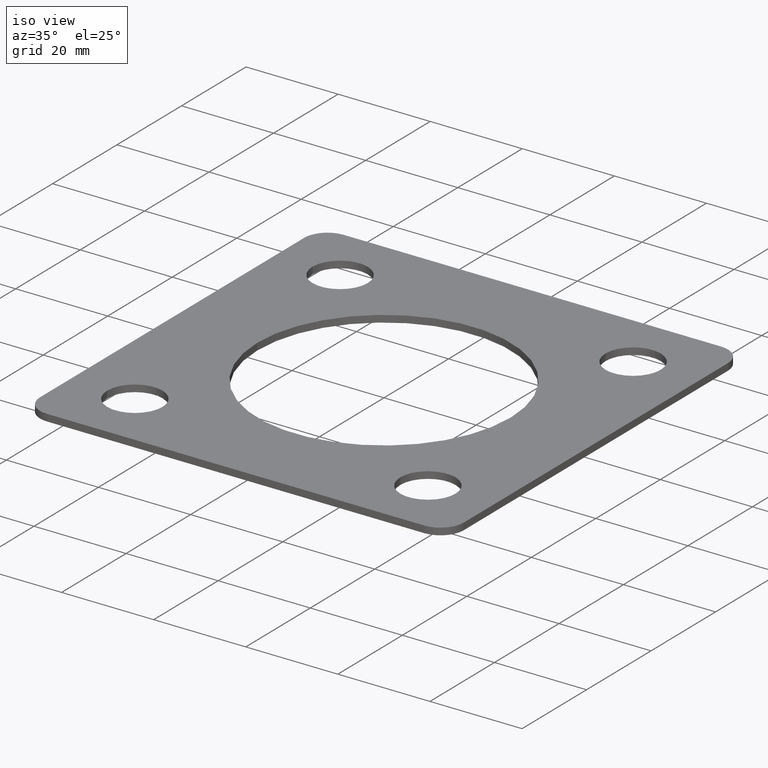
[diagram: clean part render]
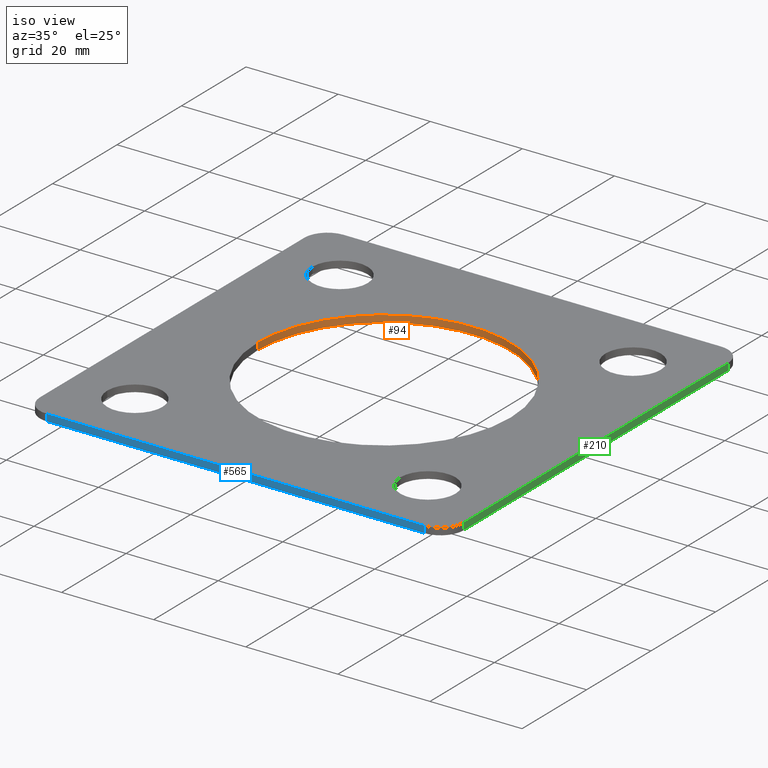
[diagram: same view with three faces highlighted in distinct colors, each labeled with its STEP entity id]
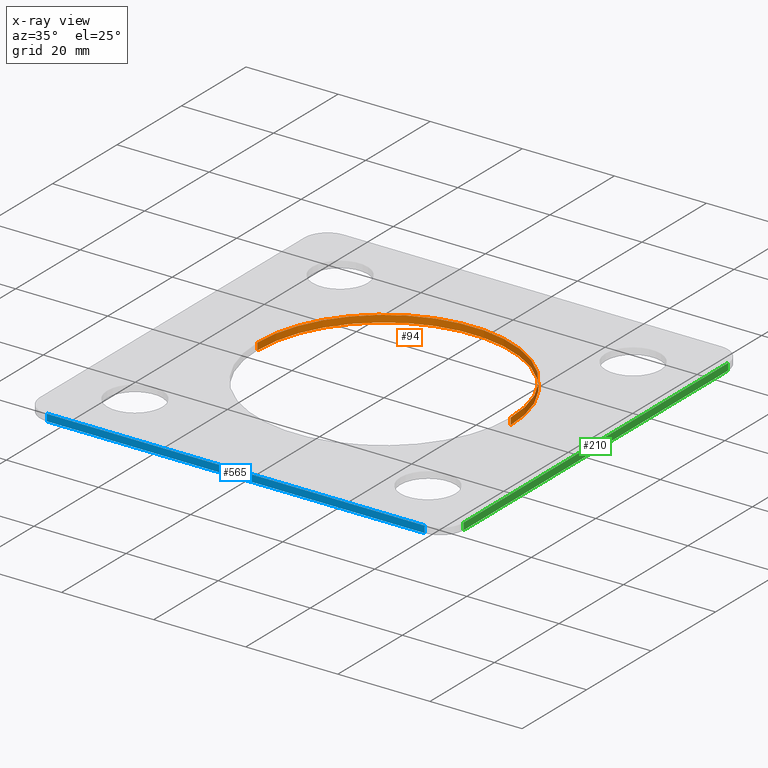
[diagram: x-ray of the same camera — body ghosted, the three highlighted faces saturated]
A machine part, iso view with three faces highlighted in distinct colors.
The next image is the same camera in x-ray (body ghosted, the three faces saturated) — at least one of them is partly hidden behind the body in this view.
Their STEP definitions:

[orange] entity #94 — the highlighted cylindrical surface (partial cylindrical patch) has radius 27.5 mm, axis along (0, 0, 1).
#1 = VERTEX_POINT ( 'NONE', #164 ) ;
#9 = EDGE_LOOP ( 'NONE', ( #475, #691, #324, #124 ) ) ;
#24 = VERTEX_POINT ( 'NONE', #339 ) ;
#94 = ADVANCED_FACE ( 'NONE', ( #740 ), #394, .F. ) ;
#124 = ORIENTED_EDGE ( 'NONE', *, *, #495, .T. ) ;
#164 = CARTESIAN_POINT ( 'NONE',  ( -27.50000000000000000, -1.317822002168941918E-15, 0.000000000000000000 ) ) ;
#203 = VECTOR ( 'NONE', #636, 1000.000000000000000 ) ;
#221 = EDGE_CURVE ( 'NONE', #512, #24, #302, .T. ) ;
#225 = DIRECTION ( 'NONE',  ( 0.000000000000000000, 0.000000000000000000, 1.000000000000000000 ) ) ;
#259 = DIRECTION ( 'NONE',  ( 0.000000000000000000, 0.000000000000000000, 1.000000000000000000 ) ) ;
#263 = CARTESIAN_POINT ( 'NONE',  ( 27.50000000000000000, -4.685600699824163028E-15, -1.500000000000000000 ) ) ;
#284 = EDGE_CURVE ( 'NONE', #556, #1, #316, .T. ) ;
#292 = DIRECTION ( 'NONE',  ( 0.000000000000000000, 0.000000000000000000, 1.000000000000000000 ) ) ;
#302 = LINE ( 'NONE', #482, #203 ) ;
#316 = LINE ( 'NONE', #322, #676 ) ;
#322 = CARTESIAN_POINT ( 'NONE',  ( -27.50000000000000000, -1.317822002168941918E-15, -1.500000000000000000 ) ) ;
#324 = ORIENTED_EDGE ( 'NONE', *, *, #221, .T. ) ;
#334 = EDGE_CURVE ( 'NONE', #512, #556, #452, .T. ) ;
#339 = CARTESIAN_POINT ( 'NONE',  ( 27.50000000000000000, -4.685600699824163028E-15, 0.000000000000000000 ) ) ;
#374 = AXIS2_PLACEMENT_3D ( 'NONE', #582, #292, #524 ) ;
#377 = CARTESIAN_POINT ( 'NONE',  ( 0.000000000000000000, -4.685600699824163028E-15, -1.500000000000000000 ) ) ;
#394 = CYLINDRICAL_SURFACE ( 'NONE', #504, 27.50000000000000000 ) ;
#423 = DIRECTION ( 'NONE',  ( 0.000000000000000000, 0.000000000000000000, 1.000000000000000000 ) ) ;
#432 = CARTESIAN_POINT ( 'NONE',  ( -27.50000000000000000, -1.317822002168941918E-15, -1.500000000000000000 ) ) ;
#452 = CIRCLE ( 'NONE', #462, 27.50000000000000000 ) ;
#462 = AXIS2_PLACEMENT_3D ( 'NONE', #377, #259, #607 ) ;
#464 = DIRECTION ( 'NONE',  ( 1.000000000000000000, 0.000000000000000000, 0.000000000000000000 ) ) ;
#475 = ORIENTED_EDGE ( 'NONE', *, *, #284, .F. ) ;
#482 = CARTESIAN_POINT ( 'NONE',  ( 27.50000000000000000, -4.685600699824163028E-15, -1.500000000000000000 ) ) ;
#495 = EDGE_CURVE ( 'NONE', #24, #1, #589, .T. ) ;
#504 = AXIS2_PLACEMENT_3D ( 'NONE', #623, #225, #464 ) ;
#512 = VERTEX_POINT ( 'NONE', #263 ) ;
#524 = DIRECTION ( 'NONE',  ( 1.000000000000000000, 0.000000000000000000, 0.000000000000000000 ) ) ;
#556 = VERTEX_POINT ( 'NONE', #432 ) ;
#582 = CARTESIAN_POINT ( 'NONE',  ( 0.000000000000000000, -4.685600699824163028E-15, 0.000000000000000000 ) ) ;
#589 = CIRCLE ( 'NONE', #374, 27.50000000000000000 ) ;
#607 = DIRECTION ( 'NONE',  ( 1.000000000000000000, 0.000000000000000000, 0.000000000000000000 ) ) ;
#623 = CARTESIAN_POINT ( 'NONE',  ( 0.000000000000000000, -4.685600699824163028E-15, -1.500000000000000000 ) ) ;
#636 = DIRECTION ( 'NONE',  ( 0.000000000000000000, 0.000000000000000000, 1.000000000000000000 ) ) ;
#676 = VECTOR ( 'NONE', #423, 1000.000000000000000 ) ;
#691 = ORIENTED_EDGE ( 'NONE', *, *, #334, .F. ) ;
#740 = FACE_OUTER_BOUND ( 'NONE', #9, .T. ) ;

[blue] entity #565 — the highlighted planar face has unit normal (0, -1, 0).
#11 = CARTESIAN_POINT ( 'NONE',  ( -41.00000000000000000, -46.00000000000000711, 0.000000000000000000 ) ) ;
#20 = VECTOR ( 'NONE', #108, 1000.000000000000000 ) ;
#34 = VECTOR ( 'NONE', #51, 1000.000000000000000 ) ;
#40 = FACE_OUTER_BOUND ( 'NONE', #465, .T. ) ;
#51 = DIRECTION ( 'NONE',  ( 0.000000000000000000, 0.000000000000000000, 1.000000000000000000 ) ) ;
#72 = EDGE_CURVE ( 'NONE', #409, #323, #574, .T. ) ;
#82 = VERTEX_POINT ( 'NONE', #329 ) ;
#108 = DIRECTION ( 'NONE',  ( -0.000000000000000000, -0.000000000000000000, -1.000000000000000000 ) ) ;
#150 = VERTEX_POINT ( 'NONE', #11 ) ;
#180 = EDGE_CURVE ( 'NONE', #150, #82, #698, .T. ) ;
#209 = PLANE ( 'NONE',  #337 ) ;
#227 = ORIENTED_EDGE ( 'NONE', *, *, #180, .F. ) ;
#271 = DIRECTION ( 'NONE',  ( 0.000000000000000000, -1.000000000000000000, 0.000000000000000000 ) ) ;
#283 = LINE ( 'NONE', #631, #34 ) ;
#323 = VERTEX_POINT ( 'NONE', #433 ) ;
#329 = CARTESIAN_POINT ( 'NONE',  ( 41.00000000000000711, -46.00000000000000711, 0.000000000000000000 ) ) ;
#335 = ORIENTED_EDGE ( 'NONE', *, *, #72, .T. ) ;
#337 = AXIS2_PLACEMENT_3D ( 'NONE', #507, #271, #674 ) ;
#409 = VERTEX_POINT ( 'NONE', #710 ) ;
#433 = CARTESIAN_POINT ( 'NONE',  ( 41.00000000000000711, -46.00000000000000711, -1.500000000000000000 ) ) ;
#451 = CARTESIAN_POINT ( 'NONE',  ( -46.00000000000000000, -46.00000000000000711, -1.500000000000000000 ) ) ;
#465 = EDGE_LOOP ( 'NONE', ( #335, #673, #227, #614 ) ) ;
#478 = DIRECTION ( 'NONE',  ( 1.000000000000000000, 0.000000000000000000, 0.000000000000000000 ) ) ;
#507 = CARTESIAN_POINT ( 'NONE',  ( -46.00000000000000000, -46.00000000000000711, -1.500000000000000000 ) ) ;
#511 = DIRECTION ( 'NONE',  ( 1.000000000000000000, 0.000000000000000000, 0.000000000000000000 ) ) ;
#565 = ADVANCED_FACE ( 'NONE', ( #40 ), #209, .T. ) ;
#574 = LINE ( 'NONE', #451, #592 ) ;
#592 = VECTOR ( 'NONE', #511, 1000.000000000000000 ) ;
#614 = ORIENTED_EDGE ( 'NONE', *, *, #739, .T. ) ;
#631 = CARTESIAN_POINT ( 'NONE',  ( 41.00000000000000711, -46.00000000000000711, -1.500000000000000000 ) ) ;
#635 = LINE ( 'NONE', #738, #20 ) ;
#673 = ORIENTED_EDGE ( 'NONE', *, *, #690, .T. ) ;
#674 = DIRECTION ( 'NONE',  ( 0.000000000000000000, -0.000000000000000000, -1.000000000000000000 ) ) ;
#690 = EDGE_CURVE ( 'NONE', #323, #82, #283, .T. ) ;
#698 = LINE ( 'NONE', #747, #719 ) ;
#710 = CARTESIAN_POINT ( 'NONE',  ( -41.00000000000000000, -46.00000000000000711, -1.500000000000000000 ) ) ;
#719 = VECTOR ( 'NONE', #478, 1000.000000000000000 ) ;
#738 = CARTESIAN_POINT ( 'NONE',  ( -41.00000000000000000, -46.00000000000000711, -1.500000000000000000 ) ) ;
#739 = EDGE_CURVE ( 'NONE', #150, #409, #635, .T. ) ;
#747 = CARTESIAN_POINT ( 'NONE',  ( -46.00000000000000000, -46.00000000000000711, 0.000000000000000000 ) ) ;

[green] entity #210 — the highlighted planar face has unit normal (1, 0, -0).
#32 = AXIS2_PLACEMENT_3D ( 'NONE', #419, #522, #648 ) ;
#38 = LINE ( 'NONE', #138, #76 ) ;
#47 = LINE ( 'NONE', #105, #141 ) ;
#76 = VECTOR ( 'NONE', #376, 1000.000000000000000 ) ;
#90 = LINE ( 'NONE', #371, #519 ) ;
#105 = CARTESIAN_POINT ( 'NONE',  ( 45.99999999999999289, 40.99999999999999289, -1.500000000000000000 ) ) ;
#131 = CARTESIAN_POINT ( 'NONE',  ( 45.99999999999999289, 40.99999999999999289, 0.000000000000000000 ) ) ;
#136 = ORIENTED_EDGE ( 'NONE', *, *, #625, .T. ) ;
#138 = CARTESIAN_POINT ( 'NONE',  ( 46.00000000000001421, -41.00000000000000000, -1.500000000000000000 ) ) ;
#141 = VECTOR ( 'NONE', #274, 1000.000000000000000 ) ;
#183 = FACE_OUTER_BOUND ( 'NONE', #249, .T. ) ;
#210 = ADVANCED_FACE ( 'NONE', ( #183 ), #644, .T. ) ;
#249 = EDGE_LOOP ( 'NONE', ( #555, #136, #743, #517 ) ) ;
#274 = DIRECTION ( 'NONE',  ( 0.000000000000000000, 0.000000000000000000, 1.000000000000000000 ) ) ;
#290 = VERTEX_POINT ( 'NONE', #426 ) ;
#341 = CARTESIAN_POINT ( 'NONE',  ( 46.00000000000001421, -41.00000000000000000, 0.000000000000000000 ) ) ;
#356 = EDGE_CURVE ( 'NONE', #701, #383, #624, .T. ) ;
#371 = CARTESIAN_POINT ( 'NONE',  ( 45.99999999999999289, 45.99999999999999289, -1.500000000000000000 ) ) ;
#376 = DIRECTION ( 'NONE',  ( -0.000000000000000000, -0.000000000000000000, -1.000000000000000000 ) ) ;
#383 = VERTEX_POINT ( 'NONE', #131 ) ;
#395 = CARTESIAN_POINT ( 'NONE',  ( 46.00000000000001421, -41.00000000000000000, -1.500000000000000000 ) ) ;
#397 = DIRECTION ( 'NONE',  ( -2.262682794752357144E-16, 1.000000000000000000, -0.000000000000000000 ) ) ;
#419 = CARTESIAN_POINT ( 'NONE',  ( 45.99999999999999289, 45.99999999999999289, -1.500000000000000000 ) ) ;
#426 = CARTESIAN_POINT ( 'NONE',  ( 45.99999999999999289, 40.99999999999999289, -1.500000000000000000 ) ) ;
#517 = ORIENTED_EDGE ( 'NONE', *, *, #680, .T. ) ;
#519 = VECTOR ( 'NONE', #545, 1000.000000000000000 ) ;
#522 = DIRECTION ( 'NONE',  ( 1.000000000000000000, 2.262682794752357144E-16, -0.000000000000000000 ) ) ;
#545 = DIRECTION ( 'NONE',  ( -2.262682794752357144E-16, 1.000000000000000000, -0.000000000000000000 ) ) ;
#555 = ORIENTED_EDGE ( 'NONE', *, *, #356, .F. ) ;
#613 = EDGE_CURVE ( 'NONE', #665, #290, #90, .T. ) ;
#624 = LINE ( 'NONE', #735, #629 ) ;
#625 = EDGE_CURVE ( 'NONE', #701, #665, #38, .T. ) ;
#629 = VECTOR ( 'NONE', #397, 1000.000000000000000 ) ;
#644 = PLANE ( 'NONE',  #32 ) ;
#648 = DIRECTION ( 'NONE',  ( -2.262682794752357144E-16, 1.000000000000000000, 0.000000000000000000 ) ) ;
#665 = VERTEX_POINT ( 'NONE', #395 ) ;
#680 = EDGE_CURVE ( 'NONE', #290, #383, #47, .T. ) ;
#701 = VERTEX_POINT ( 'NONE', #341 ) ;
#735 = CARTESIAN_POINT ( 'NONE',  ( 45.99999999999999289, 45.99999999999999289, 0.000000000000000000 ) ) ;
#743 = ORIENTED_EDGE ( 'NONE', *, *, #613, .T. ) ;